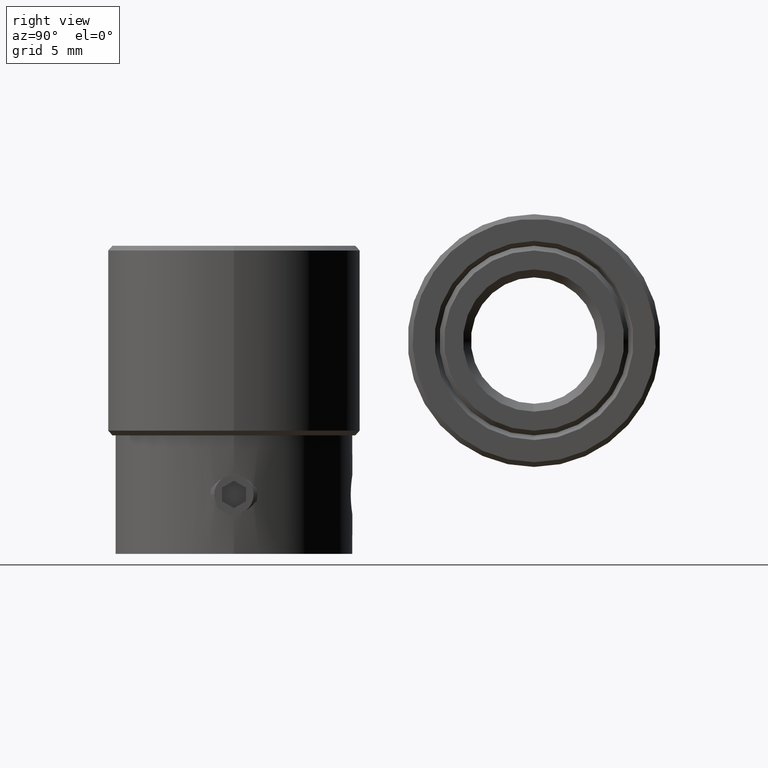
[diagram: clean part render]
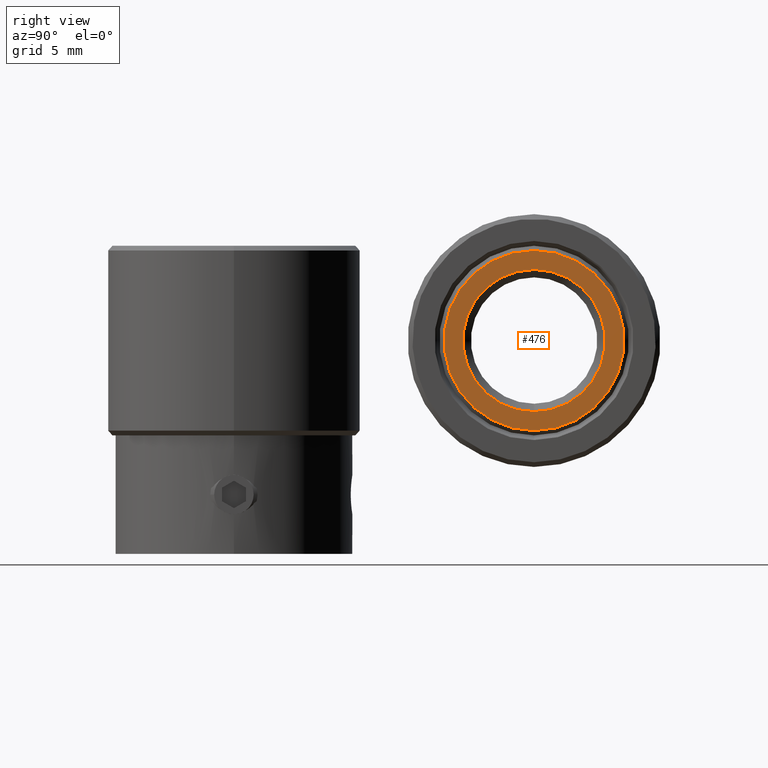
[diagram: same view with one face highlighted and labeled with its STEP entity id]
A machine part, right view. The second image highlights one B-rep face of the part: STEP entity #476.
In plain terms, the highlighted planar face has unit normal (1, 0, 0).
Its self-contained STEP definition (entity closure, byte-faithful):
#476 = ADVANCED_FACE( '', ( #621, #622 ), #623, .T. );
#621 = FACE_OUTER_BOUND( '', #865, .T. );
#622 = FACE_BOUND( '', #866, .T. );
#623 = PLANE( '', #867 );
#865 = EDGE_LOOP( '', ( #1151 ) );
#866 = EDGE_LOOP( '', ( #1152 ) );
#867 = AXIS2_PLACEMENT_3D( '', #1153, #1154, #1155 );
#1151 = ORIENTED_EDGE( '', *, *, #1587, .T. );
#1152 = ORIENTED_EDGE( '', *, *, #1593, .T. );
#1153 = CARTESIAN_POINT( '', ( 6.00000000000000, 19.0000000000000, -6.00000000000000 ) );
#1154 = DIRECTION( '', ( 1.00000000000000, 0.000000000000000, 6.12323399573677E-017 ) );
#1155 = DIRECTION( '', ( 6.12323399573677E-017, 0.000000000000000, -1.00000000000000 ) );
#1587 = EDGE_CURVE( '', #1740, #1740, #1741, .T. );
#1593 = EDGE_CURVE( '', #1752, #1752, #1753, .F. );
#1740 = VERTEX_POINT( '', #2214 );
#1741 = CIRCLE( '', #2215, 5.70000000000000 );
#1752 = VERTEX_POINT( '', #2304 );
#1753 = CIRCLE( '', #2305, 4.50000000000000 );
#2214 = CARTESIAN_POINT( '', ( 6.00000000000000, 19.0000000000000, -11.7000000000000 ) );
#2215 = AXIS2_PLACEMENT_3D( '', #2603, #2604, #2605 );
#2304 = CARTESIAN_POINT( '', ( 6.00000000000000, 19.0000000000000, -10.5000000000000 ) );
#2305 = AXIS2_PLACEMENT_3D( '', #2615, #2616, #2617 );
#2603 = CARTESIAN_POINT( '', ( 6.00000000000000, 19.0000000000000, -6.00000000000000 ) );
#2604 = DIRECTION( '', ( 1.00000000000000, 0.000000000000000, 6.12323399573676E-017 ) );
#2605 = DIRECTION( '', ( 6.12323399573677E-017, 0.000000000000000, -1.00000000000000 ) );
#2615 = CARTESIAN_POINT( '', ( 6.00000000000000, 19.0000000000000, -6.00000000000000 ) );
#2616 = DIRECTION( '', ( 1.00000000000000, 0.000000000000000, 6.12323399573676E-017 ) );
#2617 = DIRECTION( '', ( 6.12323399573676E-017, 0.000000000000000, -1.00000000000000 ) );